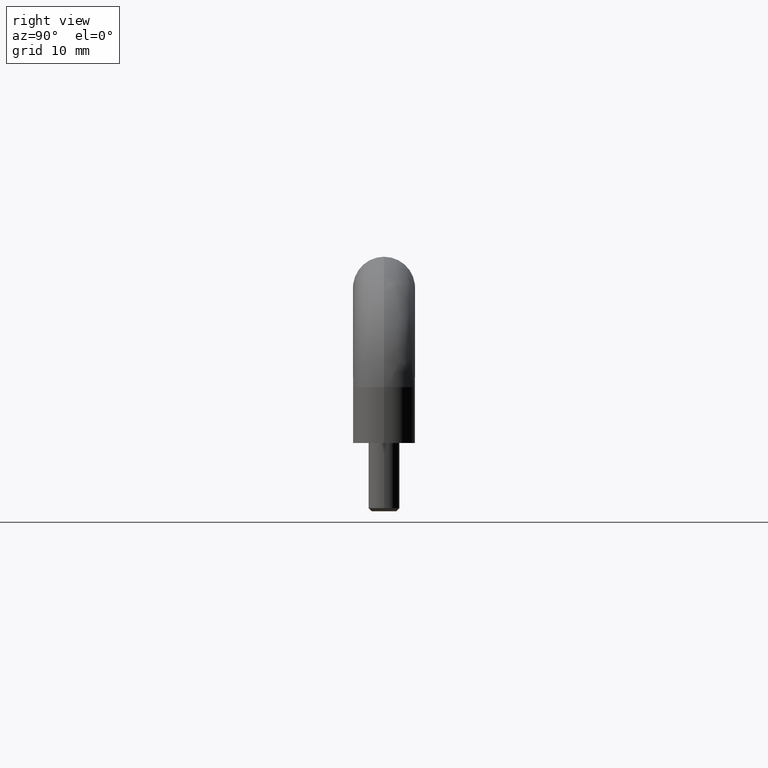
[diagram: clean part render]
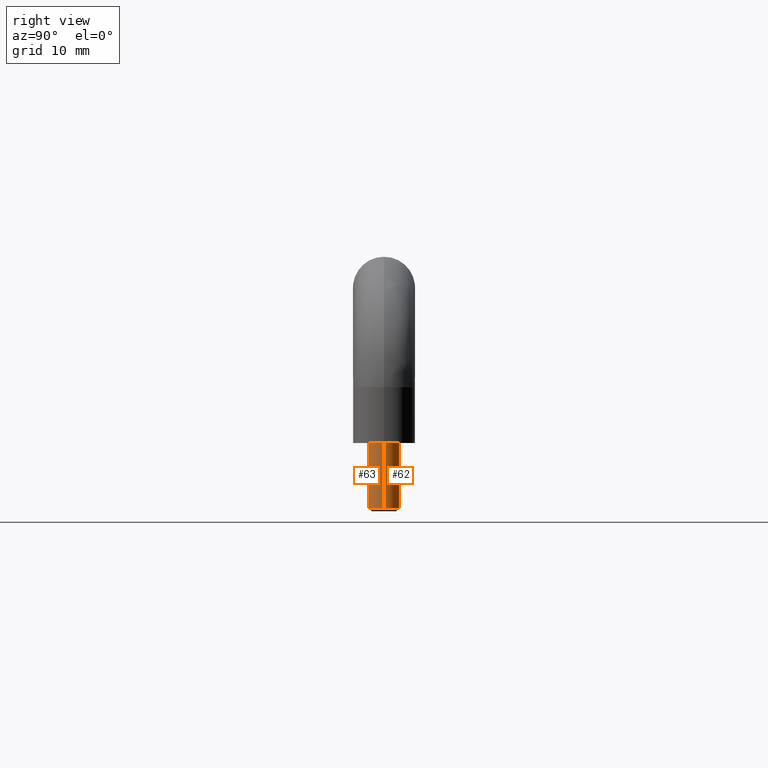
[diagram: same view with one multi-face feature highlighted, each face labeled with its STEP entity id]
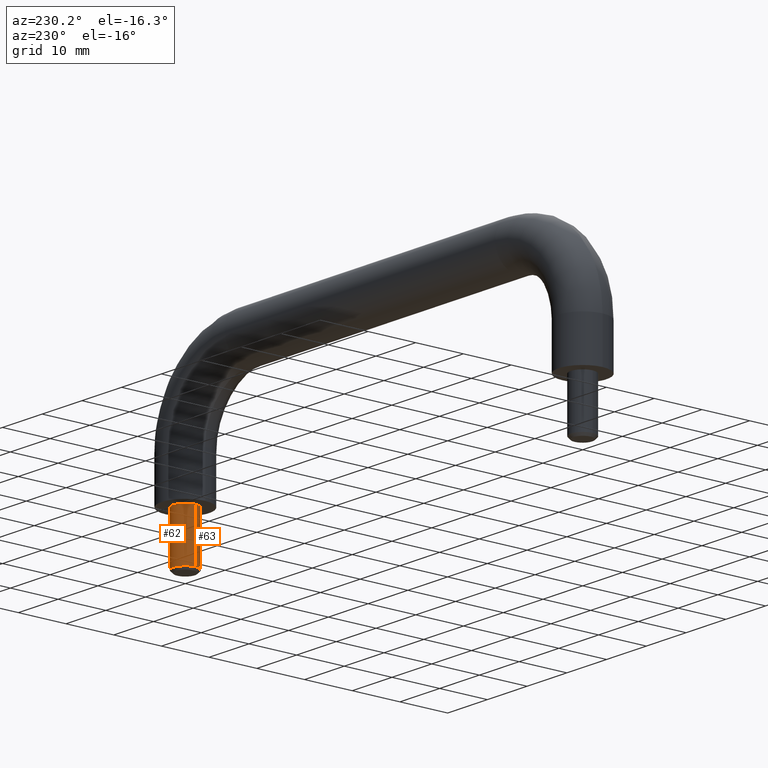
[diagram: same view with one multi-face feature highlighted, each face labeled with its STEP entity id]
A machine part, right view. The highlighted faces form ONE feature: a constant-radius fillet chain: 2 tangent blend faces with common blend radius 2.5 mm. The faces share edges in the B-rep.
A second angle (auxiliary view) of the same feature is appended — it is thin or edge-on in the first view.
Their STEP definitions:
[1] entity #63 (Cylinder):
#63=ADVANCED_FACE('',(#297),#296,.T.);
#296=CYLINDRICAL_SURFACE('',#630,2.50000000000E+00);
#297=FACE_OUTER_BOUND('',#631,.T.);
#627=CARTESIAN_POINT('',(4.99999999999E+01,0.00000000000E+00,-2.52500000000E+01));
#628=DIRECTION('',(-0.00000000000E+00,0.00000000000E+00,-1.00000000000E+00));
#629=DIRECTION('',(-1.00000000000E+00,-0.00000000000E+00,0.00000000000E+00));
#630=AXIS2_PLACEMENT_3D('',#627,#628,#629);
#631=EDGE_LOOP('',(#720,#721,#722,#723));
#720=ORIENTED_EDGE('',*,*,#732,.T.);
#721=ORIENTED_EDGE('',*,*,#768,.T.);
#722=ORIENTED_EDGE('',*,*,#767,.F.);
#723=ORIENTED_EDGE('',*,*,#769,.F.);
#732=EDGE_CURVE('',#826,#827,#828,.T.);
#767=EDGE_CURVE('',#1035,#1034,#1054,.T.);
#768=EDGE_CURVE('',#827,#1034,#1060,.T.);
#769=EDGE_CURVE('',#826,#1035,#1066,.T.);
#826=VERTEX_POINT('',#1117);
#827=VERTEX_POINT('',#1118);
#828=CIRCLE('',#1122,2.50000000000E+00);
#1034=VERTEX_POINT('',#1242);
#1035=VERTEX_POINT('',#1243);
#1054=CIRCLE('',#1255,2.50000000000E+00);
#1060=(BOUNDED_CURVE() B_SPLINE_CURVE(1,(#1256,#1257),.UNSPECIFIED.,.F.,.F.) B_SPLINE_CURVE_WITH_KNOTS((2,2),(8.33333343261E-02,9.16666667006E-01),.UNSPECIFIED.) CURVE() GEOMETRIC_REPRESENTATION_ITEM() RATIONAL_B_SPLINE_CURVE((1.00000000000E+00,1.00000000000E+00)) REPRESENTATION_ITEM('') );
#1066=(BOUNDED_CURVE() B_SPLINE_CURVE(1,(#1258,#1259),.UNSPECIFIED.,.F.,.F.) B_SPLINE_CURVE_WITH_KNOTS((2,2),(8.33333333333E-02,9.16666666667E-01),.UNSPECIFIED.) CURVE() GEOMETRIC_REPRESENTATION_ITEM() RATIONAL_B_SPLINE_CURVE((7.50000000000E-01,7.50000000000E-01)) REPRESENTATION_ITEM('') );
#1117=CARTESIAN_POINT('',(5.24999999999E+01,0.00000000000E+00,-2.00000000000E+01));
#1118=CARTESIAN_POINT('',(4.74999999999E+01,-4.54181325073E-16,-2.00000000000E+01));
#1119=CARTESIAN_POINT('',(4.99999999999E+01,0.00000000000E+00,-2.00000000000E+01));
#1120=DIRECTION('',(0.00000000000E+00,0.00000000000E+00,-1.00000000000E+00));
#1121=DIRECTION('',(-1.00000000000E+00,-5.92118946468E-17,-0.00000000000E+00));
#1122=AXIS2_PLACEMENT_3D('',#1119,#1120,#1121);
#1242=CARTESIAN_POINT('',(4.74999999999E+01,-4.54181325073E-16,-3.05000000000E+01));
#1243=CARTESIAN_POINT('',(5.24999999999E+01,1.70808552487E-11,-3.05000000000E+01));
#1252=CARTESIAN_POINT('',(4.99999999999E+01,0.00000000000E+00,-3.05000000000E+01));
#1253=DIRECTION('',(0.00000000000E+00,0.00000000000E+00,-1.00000000000E+00));
#1254=DIRECTION('',(-1.00000000000E+00,-5.92118946468E-17,-0.00000000000E+00));
#1255=AXIS2_PLACEMENT_3D('',#1252,#1253,#1254);
#1256=CARTESIAN_POINT('',(4.74999999999E+01,0.00000000000E+00,-2.00000000125E+01));
#1257=CARTESIAN_POINT('',(4.74999999999E+01,0.00000000000E+00,-3.05000000043E+01));
#1258=CARTESIAN_POINT('',(5.24999999999E+01,-1.48029736617E-16,-2.00000000000E+01));
#1259=CARTESIAN_POINT('',(5.24999999999E+01,-1.48029736617E-16,-3.05000000000E+01));
[2] entity #62 (Cylinder):
#62=ADVANCED_FACE('',(#287),#286,.T.);
#286=CYLINDRICAL_SURFACE('',#625,2.50000000000E+00);
#287=FACE_OUTER_BOUND('',#626,.T.);
#622=CARTESIAN_POINT('',(4.99999999999E+01,0.00000000000E+00,-2.52500000000E+01));
#623=DIRECTION('',(-0.00000000000E+00,0.00000000000E+00,-1.00000000000E+00));
#624=DIRECTION('',(-1.00000000000E+00,-0.00000000000E+00,0.00000000000E+00));
#625=AXIS2_PLACEMENT_3D('',#622,#623,#624);
#626=EDGE_LOOP('',(#716,#717,#718,#719));
#716=ORIENTED_EDGE('',*,*,#764,.F.);
#717=ORIENTED_EDGE('',*,*,#768,.F.);
#718=ORIENTED_EDGE('',*,*,#733,.T.);
#719=ORIENTED_EDGE('',*,*,#769,.T.);
#733=EDGE_CURVE('',#827,#826,#834,.T.);
#764=EDGE_CURVE('',#1034,#1035,#1036,.T.);
#768=EDGE_CURVE('',#827,#1034,#1060,.T.);
#769=EDGE_CURVE('',#826,#1035,#1066,.T.);
#826=VERTEX_POINT('',#1117);
#827=VERTEX_POINT('',#1118);
#834=CIRCLE('',#1126,2.50000000000E+00);
#1034=VERTEX_POINT('',#1242);
#1035=VERTEX_POINT('',#1243);
#1036=CIRCLE('',#1247,2.50000000000E+00);
#1060=(BOUNDED_CURVE() B_SPLINE_CURVE(1,(#1256,#1257),.UNSPECIFIED.,.F.,.F.) B_SPLINE_CURVE_WITH_KNOTS((2,2),(8.33333343261E-02,9.16666667006E-01),.UNSPECIFIED.) CURVE() GEOMETRIC_REPRESENTATION_ITEM() RATIONAL_B_SPLINE_CURVE((1.00000000000E+00,1.00000000000E+00)) REPRESENTATION_ITEM('') );
#1066=(BOUNDED_CURVE() B_SPLINE_CURVE(1,(#1258,#1259),.UNSPECIFIED.,.F.,.F.) B_SPLINE_CURVE_WITH_KNOTS((2,2),(8.33333333333E-02,9.16666666667E-01),.UNSPECIFIED.) CURVE() GEOMETRIC_REPRESENTATION_ITEM() RATIONAL_B_SPLINE_CURVE((7.50000000000E-01,7.50000000000E-01)) REPRESENTATION_ITEM('') );
#1117=CARTESIAN_POINT('',(5.24999999999E+01,0.00000000000E+00,-2.00000000000E+01));
#1118=CARTESIAN_POINT('',(4.74999999999E+01,-4.54181325073E-16,-2.00000000000E+01));
#1123=CARTESIAN_POINT('',(4.99999999999E+01,0.00000000000E+00,-2.00000000000E+01));
#1124=DIRECTION('',(0.00000000000E+00,0.00000000000E+00,-1.00000000000E+00));
#1125=DIRECTION('',(-1.00000000000E+00,-5.92118946468E-17,-0.00000000000E+00));
#1126=AXIS2_PLACEMENT_3D('',#1123,#1124,#1125);
#1242=CARTESIAN_POINT('',(4.74999999999E+01,-4.54181325073E-16,-3.05000000000E+01));
#1243=CARTESIAN_POINT('',(5.24999999999E+01,1.70808552487E-11,-3.05000000000E+01));
#1244=CARTESIAN_POINT('',(4.99999999999E+01,0.00000000000E+00,-3.05000000000E+01));
#1245=DIRECTION('',(0.00000000000E+00,0.00000000000E+00,-1.00000000000E+00));
#1246=DIRECTION('',(-1.00000000000E+00,-5.92118946468E-17,-0.00000000000E+00));
#1247=AXIS2_PLACEMENT_3D('',#1244,#1245,#1246);
#1256=CARTESIAN_POINT('',(4.74999999999E+01,0.00000000000E+00,-2.00000000125E+01));
#1257=CARTESIAN_POINT('',(4.74999999999E+01,0.00000000000E+00,-3.05000000043E+01));
#1258=CARTESIAN_POINT('',(5.24999999999E+01,-1.48029736617E-16,-2.00000000000E+01));
#1259=CARTESIAN_POINT('',(5.24999999999E+01,-1.48029736617E-16,-3.05000000000E+01));